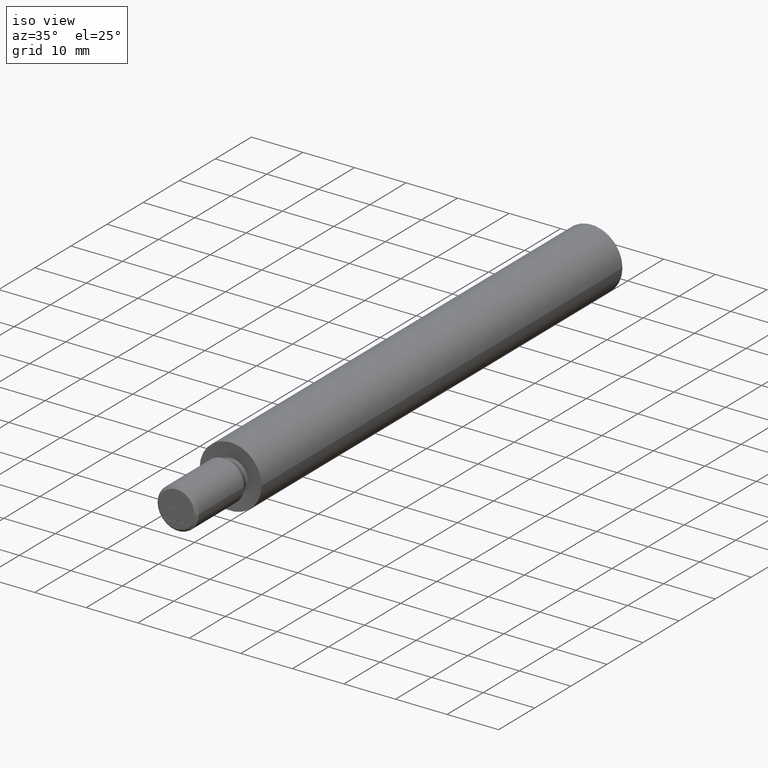
[diagram: clean part render]
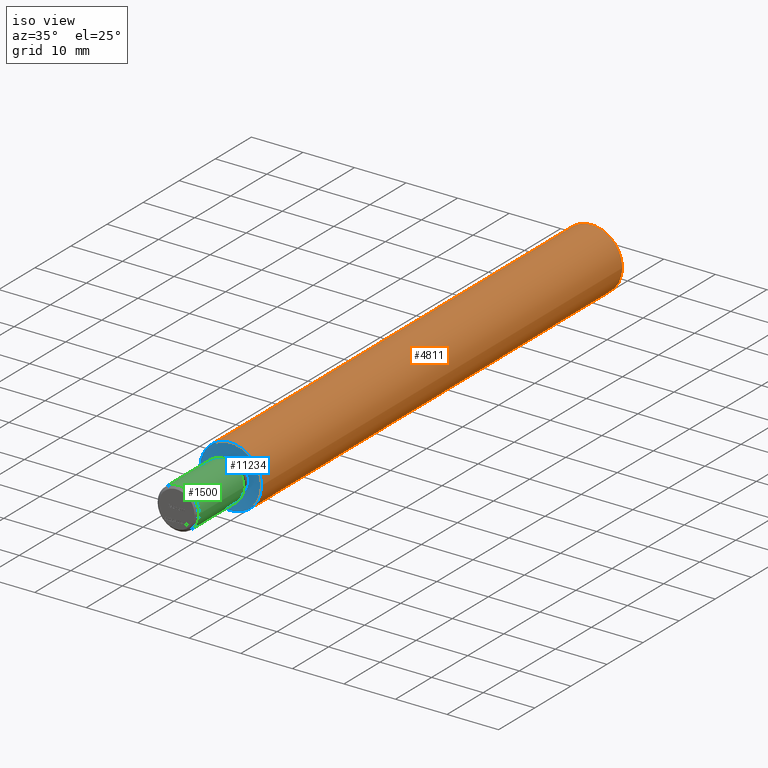
[diagram: same view with three faces highlighted in distinct colors, each labeled with its STEP entity id]
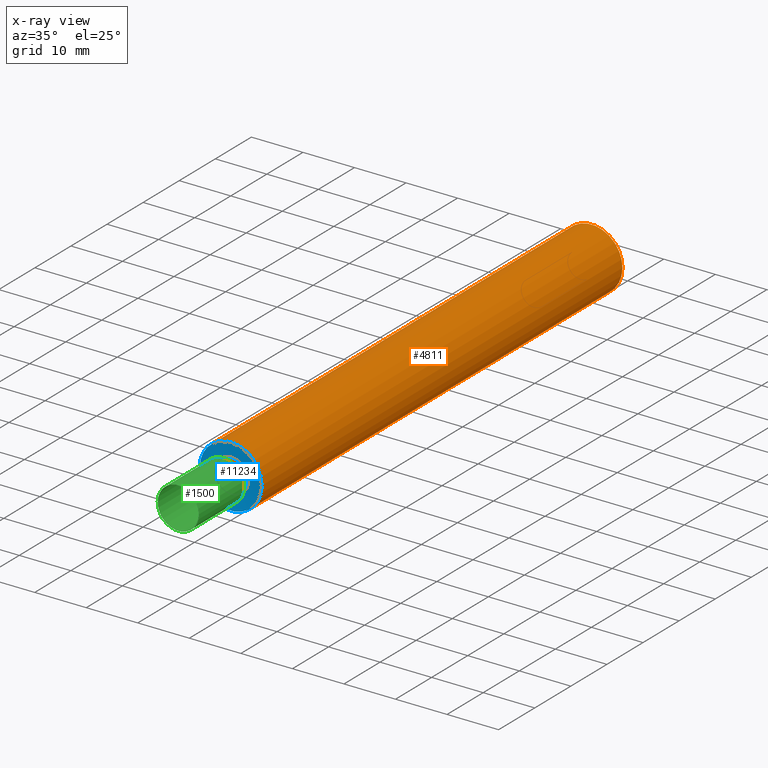
[diagram: x-ray of the same camera — body ghosted, the three highlighted faces saturated]
A machine part, iso view with three faces highlighted in distinct colors.
The next image is the same camera in x-ray (body ghosted, the three faces saturated) — at least one of them is partly hidden behind the body in this view.
Their STEP definitions:

[orange] entity #4811 — the highlighted cylindrical surface (bore or boss wall) has radius 6 mm, axis along (0, -1, -0).
#93 = CARTESIAN_POINT ( 'NONE',  ( 1.674721690771509485E-31, 0.000000000000000000, 0.000000000000000000 ) ) ;
#246 = CARTESIAN_POINT ( 'NONE',  ( 6.000000000000009770, 1.004833014462907251E-32, 0.000000000000000000 ) ) ;
#297 = AXIS2_PLACEMENT_3D ( 'NONE', #11443, #1989, #13624 ) ;
#1366 = EDGE_LOOP ( 'NONE', ( #10231 ) ) ;
#1989 = DIRECTION ( 'NONE',  ( 1.674721690771509348E-33, -1.000000000000000000, -0.000000000000000000 ) ) ;
#2567 = ORIENTED_EDGE ( 'NONE', *, *, #7106, .T. ) ;
#3460 = DIRECTION ( 'NONE',  ( 1.000000000000000000, 1.674721690771509348E-33, 0.000000000000000000 ) ) ;
#4392 = DIRECTION ( 'NONE',  ( 1.000000000000000000, 0.000000000000000000, 0.000000000000000000 ) ) ;
#4811 = ADVANCED_FACE ( 'NONE', ( #7420, #8410 ), #11887, .T. ) ;
#4830 = CIRCLE ( 'NONE', #297, 5.999999999999993783 ) ;
#4967 = VERTEX_POINT ( 'NONE', #7485 ) ;
#6362 = EDGE_CURVE ( 'NONE', #13550, #13550, #12938, .T. ) ;
#7106 = EDGE_CURVE ( 'NONE', #4967, #4967, #4830, .T. ) ;
#7420 = FACE_OUTER_BOUND ( 'NONE', #7538, .T. ) ;
#7473 = DIRECTION ( 'NONE',  ( 1.674721690771509348E-33, -1.000000000000000000, -0.000000000000000000 ) ) ;
#7485 = CARTESIAN_POINT ( 'NONE',  ( 5.999999999999993783, 100.0000000000000000, 0.000000000000000000 ) ) ;
#7538 = EDGE_LOOP ( 'NONE', ( #2567 ) ) ;
#7787 = AXIS2_PLACEMENT_3D ( 'NONE', #93, #10813, #3460 ) ;
#8410 = FACE_OUTER_BOUND ( 'NONE', #1366, .T. ) ;
#9605 = AXIS2_PLACEMENT_3D ( 'NONE', #9711, #7473, #4392 ) ;
#9711 = CARTESIAN_POINT ( 'NONE',  ( 1.925929944387235853E-31, -15.00000000000000000, 0.000000000000000000 ) ) ;
#10231 = ORIENTED_EDGE ( 'NONE', *, *, #6362, .F. ) ;
#10813 = DIRECTION ( 'NONE',  ( 1.674721690771509348E-33, -1.000000000000000000, -0.000000000000000000 ) ) ;
#11443 = CARTESIAN_POINT ( 'NONE',  ( 0.000000000000000000, 100.0000000000000000, 0.000000000000000000 ) ) ;
#11887 = CYLINDRICAL_SURFACE ( 'NONE', #9605, 6.000000000000001776 ) ;
#12938 = CIRCLE ( 'NONE', #7787, 6.000000000000009770 ) ;
#13550 = VERTEX_POINT ( 'NONE', #246 ) ;
#13624 = DIRECTION ( 'NONE',  ( 1.000000000000000000, 0.000000000000000000, 0.000000000000000000 ) ) ;

[blue] entity #11234 — the highlighted conical surface has half-angle 85 deg.
#93 = CARTESIAN_POINT ( 'NONE',  ( 1.674721690771509485E-31, 0.000000000000000000, 0.000000000000000000 ) ) ;
#169 = DIRECTION ( 'NONE',  ( 1.000000000000000000, 0.000000000000000000, 0.000000000000000000 ) ) ;
#246 = CARTESIAN_POINT ( 'NONE',  ( 6.000000000000009770, 1.004833014462907251E-32, 0.000000000000000000 ) ) ;
#797 = DIRECTION ( 'NONE',  ( 1.000000000000000000, 0.000000000000000000, 0.000000000000000000 ) ) ;
#832 = VERTEX_POINT ( 'NONE', #7614 ) ;
#930 = AXIS2_PLACEMENT_3D ( 'NONE', #13355, #2872, #797 ) ;
#2872 = DIRECTION ( 'NONE',  ( 1.674721690771509348E-33, -1.000000000000000000, -0.000000000000000000 ) ) ;
#3460 = DIRECTION ( 'NONE',  ( 1.000000000000000000, 1.674721690771509348E-33, 0.000000000000000000 ) ) ;
#6145 = FACE_BOUND ( 'NONE', #12328, .T. ) ;
#6362 = EDGE_CURVE ( 'NONE', #13550, #13550, #12938, .T. ) ;
#6467 = DIRECTION ( 'NONE',  ( 1.674721690771509348E-33, -1.000000000000000000, -0.000000000000000000 ) ) ;
#7614 = CARTESIAN_POINT ( 'NONE',  ( 3.320072066050799187, 0.2344633132870081738, 0.000000000000000000 ) ) ;
#7787 = AXIS2_PLACEMENT_3D ( 'NONE', #93, #10813, #3460 ) ;
#8632 = CONICAL_SURFACE ( 'NONE', #930, 3.320072066050799187, 1.483529864195179737 ) ;
#9111 = FACE_OUTER_BOUND ( 'NONE', #13544, .T. ) ;
#9322 = ORIENTED_EDGE ( 'NONE', *, *, #6362, .T. ) ;
#9379 = CIRCLE ( 'NONE', #12318, 3.320072066050799187 ) ;
#9662 = EDGE_CURVE ( 'NONE', #832, #832, #9379, .T. ) ;
#10813 = DIRECTION ( 'NONE',  ( 1.674721690771509348E-33, -1.000000000000000000, -0.000000000000000000 ) ) ;
#11017 = ORIENTED_EDGE ( 'NONE', *, *, #9662, .F. ) ;
#11234 = ADVANCED_FACE ( 'NONE', ( #9111, #6145 ), #8632, .F. ) ;
#11751 = CARTESIAN_POINT ( 'NONE',  ( 1.670795082806990459E-31, 0.2344633132870081738, 0.000000000000000000 ) ) ;
#12318 = AXIS2_PLACEMENT_3D ( 'NONE', #11751, #6467, #169 ) ;
#12328 = EDGE_LOOP ( 'NONE', ( #11017 ) ) ;
#12938 = CIRCLE ( 'NONE', #7787, 6.000000000000009770 ) ;
#13355 = CARTESIAN_POINT ( 'NONE',  ( 1.670795082806990459E-31, 0.2344633132870081738, 0.000000000000000000 ) ) ;
#13544 = EDGE_LOOP ( 'NONE', ( #9322 ) ) ;
#13550 = VERTEX_POINT ( 'NONE', #246 ) ;

[green] entity #1500 — the highlighted cylindrical surface (bore or boss wall) has radius 4 mm, axis along (0, -1, -0).
#2 = VERTEX_POINT ( 'NONE', #4543 ) ;
#196 = CARTESIAN_POINT ( 'NONE',  ( 4.000000000000000888, -14.50000000000001599, 0.000000000000000000 ) ) ;
#457 = EDGE_CURVE ( 'NONE', #13060, #13060, #912, .T. ) ;
#912 = CIRCLE ( 'NONE', #4900, 4.000000000000000888 ) ;
#1169 = EDGE_LOOP ( 'NONE', ( #2345 ) ) ;
#1481 = CARTESIAN_POINT ( 'NONE',  ( 1.708216124586939521E-31, -2.000000000000000000, 0.000000000000000000 ) ) ;
#1500 = ADVANCED_FACE ( 'NONE', ( #9117, #2860 ), #2042, .T. ) ;
#2042 = CYLINDRICAL_SURFACE ( 'NONE', #9498, 4.000000000000000888 ) ;
#2345 = ORIENTED_EDGE ( 'NONE', *, *, #457, .T. ) ;
#2860 = FACE_OUTER_BOUND ( 'NONE', #11310, .T. ) ;
#4543 = CARTESIAN_POINT ( 'NONE',  ( 4.000000000000000000, -2.000000000000000000, 0.000000000000000000 ) ) ;
#4900 = AXIS2_PLACEMENT_3D ( 'NONE', #7199, #6127, #7050 ) ;
#6127 = DIRECTION ( 'NONE',  ( -1.674721690771513454E-33, 1.000000000000000000, 0.000000000000000000 ) ) ;
#7050 = DIRECTION ( 'NONE',  ( 1.000000000000000000, 0.000000000000000000, 0.000000000000000000 ) ) ;
#7199 = CARTESIAN_POINT ( 'NONE',  ( 1.917556335933378563E-31, -14.50000000000001599, 0.000000000000000000 ) ) ;
#7304 = ORIENTED_EDGE ( 'NONE', *, *, #11562, .T. ) ;
#7700 = DIRECTION ( 'NONE',  ( 1.000000000000000000, 0.000000000000000000, 0.000000000000000000 ) ) ;
#8231 = AXIS2_PLACEMENT_3D ( 'NONE', #1481, #8895, #7700 ) ;
#8895 = DIRECTION ( 'NONE',  ( 1.674721690771509348E-33, -1.000000000000000000, -0.000000000000000000 ) ) ;
#9117 = FACE_OUTER_BOUND ( 'NONE', #1169, .T. ) ;
#9498 = AXIS2_PLACEMENT_3D ( 'NONE', #11308, #13586, #12395 ) ;
#11308 = CARTESIAN_POINT ( 'NONE',  ( 1.925929944387235853E-31, -15.00000000000000000, 0.000000000000000000 ) ) ;
#11310 = EDGE_LOOP ( 'NONE', ( #7304 ) ) ;
#11562 = EDGE_CURVE ( 'NONE', #2, #2, #11913, .T. ) ;
#11913 = CIRCLE ( 'NONE', #8231, 4.000000000000000000 ) ;
#12395 = DIRECTION ( 'NONE',  ( 1.000000000000000000, 0.000000000000000000, 0.000000000000000000 ) ) ;
#13060 = VERTEX_POINT ( 'NONE', #196 ) ;
#13586 = DIRECTION ( 'NONE',  ( 1.674721690771509348E-33, -1.000000000000000000, -0.000000000000000000 ) ) ;